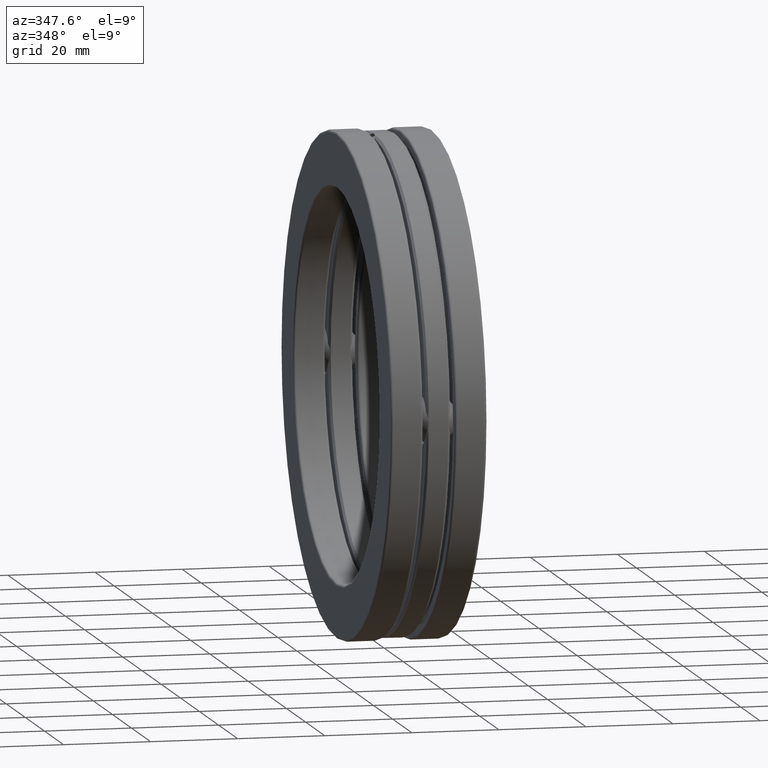
[diagram: clean part render]
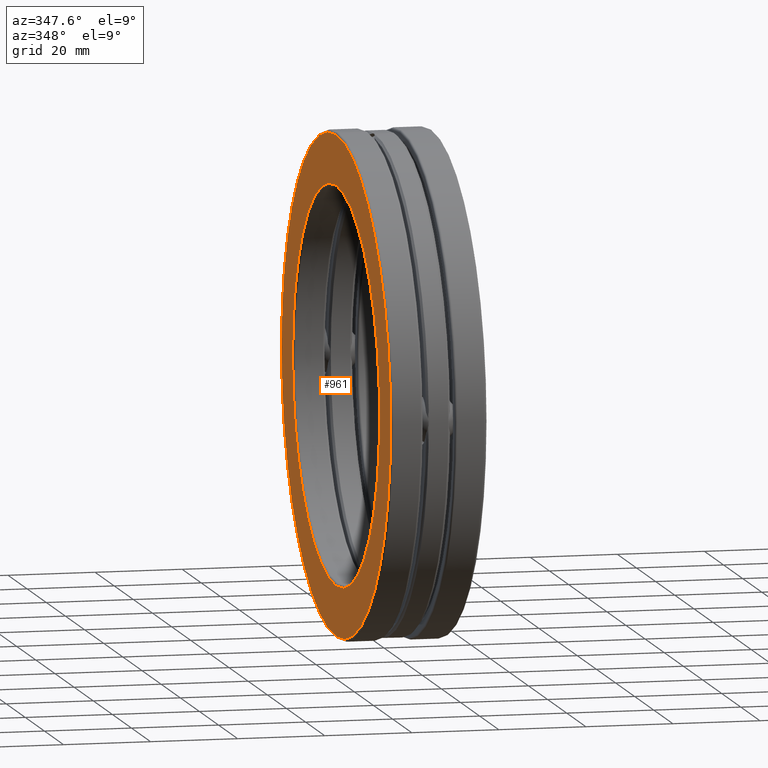
[diagram: same view with one face highlighted and labeled with its STEP entity id]
A machine part, auxiliary view. The second image highlights one B-rep face of the part: STEP entity #961.
In plain terms, the highlighted planar face has unit normal (1, 0, 0).
Its self-contained STEP definition (entity closure, byte-faithful):
#6 = DIRECTION ( 'NONE',  ( -1.000000000000000000, -0.0000000000000000000, -0.0000000000000000000 ) ) ;
#192 = CIRCLE ( 'NONE', #254, 2.244000000000000200 ) ;
#252 = EDGE_LOOP ( 'NONE', ( #1172 ) ) ;
#254 = AXIS2_PLACEMENT_3D ( 'NONE', #1270, #764, #1067 ) ;
#381 = DIRECTION ( 'NONE',  ( 1.000000000000000000, 0.0000000000000000000, 0.0000000000000000000 ) ) ;
#521 = CARTESIAN_POINT ( 'NONE',  ( -0.4329999999999998800, 0.0000000000000000000, 0.0000000000000000000 ) ) ;
#583 = DIRECTION ( 'NONE',  ( 0.0000000000000000000, 0.0000000000000000000, -1.000000000000000000 ) ) ;
#662 = CARTESIAN_POINT ( 'NONE',  ( -0.4329999999999998800, 0.0000000000000000000, 0.0000000000000000000 ) ) ;
#720 = DIRECTION ( 'NONE',  ( 0.0000000000000000000, 0.0000000000000000000, 1.000000000000000000 ) ) ;
#735 = AXIS2_PLACEMENT_3D ( 'NONE', #662, #381, #583 ) ;
#764 = DIRECTION ( 'NONE',  ( -1.000000000000000000, -0.0000000000000000000, -0.0000000000000000000 ) ) ;
#834 = CARTESIAN_POINT ( 'NONE',  ( -0.4329999999999998800, 0.0000000000000000000, 1.791499999999999600 ) ) ;
#873 = ORIENTED_EDGE ( 'NONE', *, *, #1124, .F. ) ;
#894 = FACE_BOUND ( 'NONE', #1247, .T. ) ;
#922 = FACE_OUTER_BOUND ( 'NONE', #252, .T. ) ;
#934 = CARTESIAN_POINT ( 'NONE',  ( -0.4329999999999998800, 0.0000000000000000000, 2.244000000000000200 ) ) ;
#961 = ADVANCED_FACE ( 'NONE', ( #894, #922 ), #1084, .F. ) ;
#982 = EDGE_CURVE ( 'NONE', #1059, #1059, #192, .T. ) ;
#1043 = VERTEX_POINT ( 'NONE', #834 ) ;
#1059 = VERTEX_POINT ( 'NONE', #934 ) ;
#1067 = DIRECTION ( 'NONE',  ( 0.0000000000000000000, 0.0000000000000000000, 1.000000000000000000 ) ) ;
#1084 = PLANE ( 'NONE',  #735 ) ;
#1124 = EDGE_CURVE ( 'NONE', #1043, #1043, #1205, .T. ) ;
#1172 = ORIENTED_EDGE ( 'NONE', *, *, #982, .T. ) ;
#1205 = CIRCLE ( 'NONE', #1213, 1.791499999999999600 ) ;
#1213 = AXIS2_PLACEMENT_3D ( 'NONE', #521, #6, #720 ) ;
#1247 = EDGE_LOOP ( 'NONE', ( #873 ) ) ;
#1270 = CARTESIAN_POINT ( 'NONE',  ( -0.4329999999999998800, 0.0000000000000000000, 0.0000000000000000000 ) ) ;